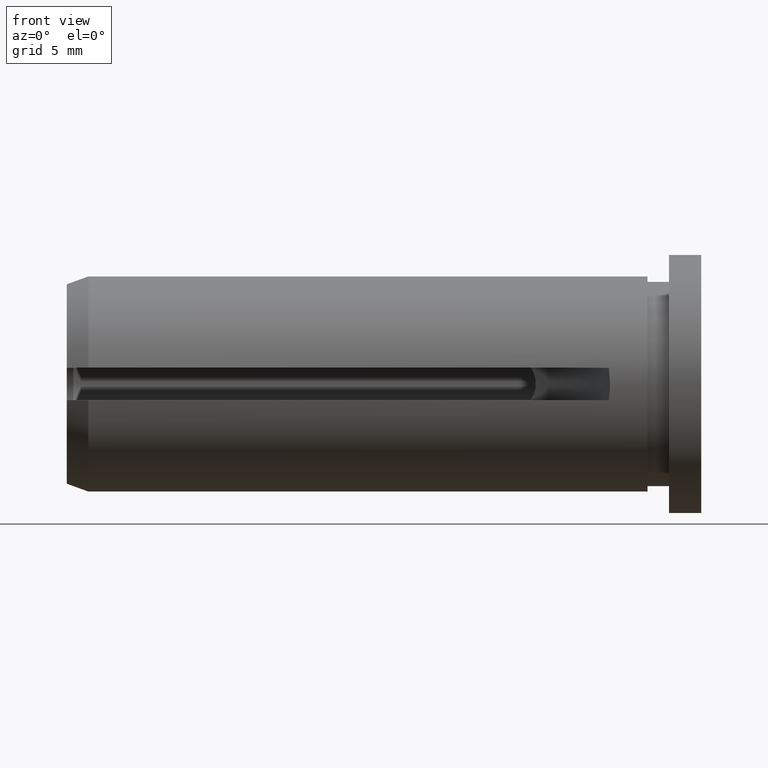
[diagram: clean part render]
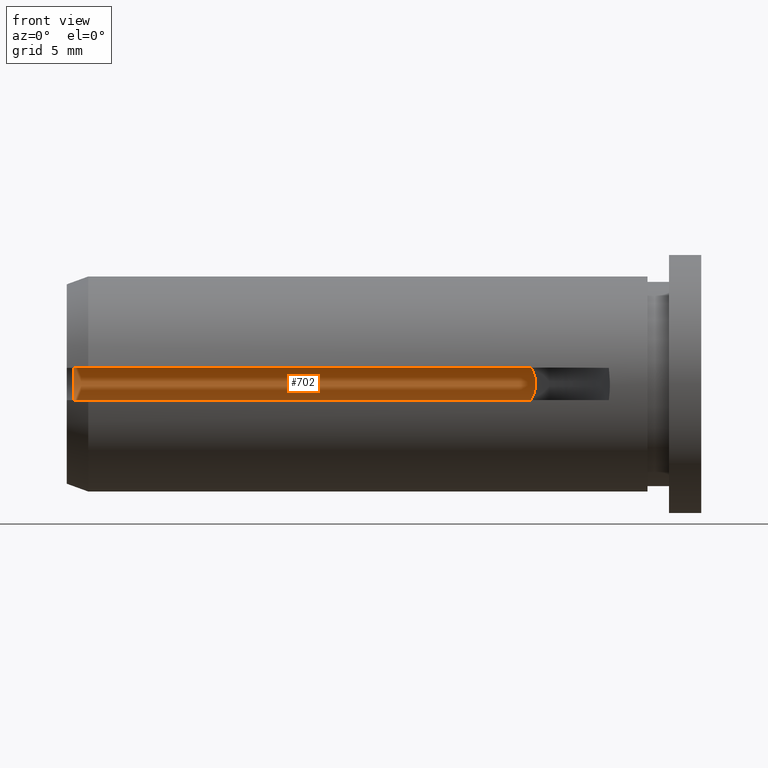
[diagram: same view with one face highlighted and labeled with its STEP entity id]
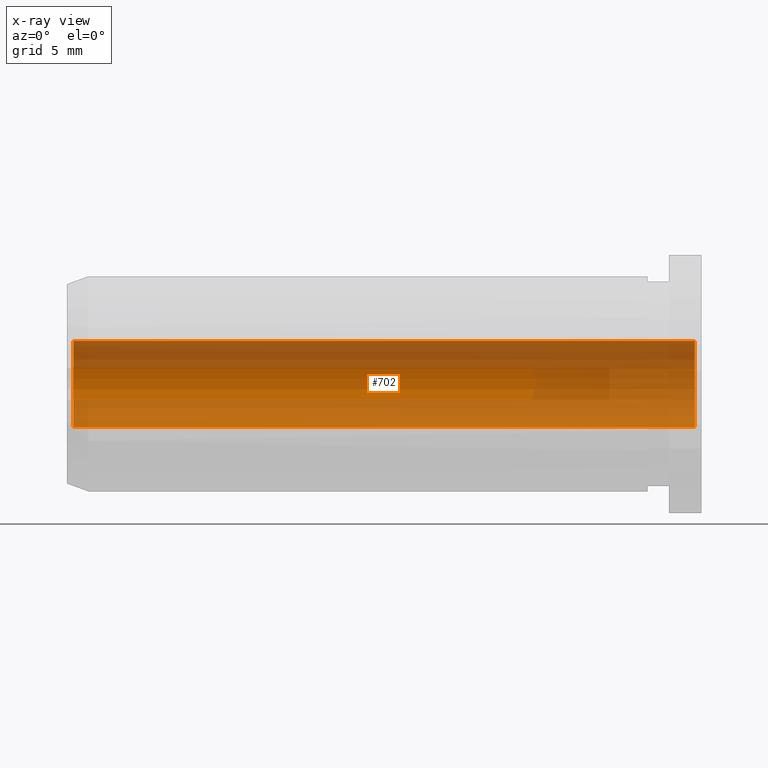
[diagram: x-ray of the same camera — body ghosted, the highlighted face saturated]
A machine part, front view. The second image highlights one B-rep face of the part: STEP entity #702.
The next image is the same camera in x-ray: the body ghosted, the highlighted face saturated — about 72% of this face is hidden behind the body in this view.
In plain terms, the highlighted cylindrical surface (partial cylindrical patch) has radius 2 mm, axis along (-1, -0, -0).
Its self-contained STEP definition (entity closure, byte-faithful):
#10 = CYLINDRICAL_SURFACE ( 'NONE', #131, 2.000000000000000000 ) ;
#37 = CARTESIAN_POINT ( 'NONE',  ( -29.19999999999999900, 0.0000000000000000000, 2.000000000000000000 ) ) ;
#45 = DIRECTION ( 'NONE',  ( 0.0000000000000000000, 0.0000000000000000000, 1.000000000000000000 ) ) ;
#48 = LINE ( 'NONE', #644, #208 ) ;
#52 = CARTESIAN_POINT ( 'NONE',  ( -0.3000000000000016500, 2.555351122167198000E-016, 2.000000000000000000 ) ) ;
#56 = VERTEX_POINT ( 'NONE', #716 ) ;
#81 = DIRECTION ( 'NONE',  ( 0.0000000000000000000, 0.0000000000000000000, 1.000000000000000000 ) ) ;
#88 = DIRECTION ( 'NONE',  ( -1.000000000000000000, -0.0000000000000000000, -0.0000000000000000000 ) ) ;
#112 = DIRECTION ( 'NONE',  ( -1.000000000000000000, -0.0000000000000000000, -0.0000000000000000000 ) ) ;
#131 = AXIS2_PLACEMENT_3D ( 'NONE', #519, #112, #81 ) ;
#156 = VERTEX_POINT ( 'NONE', #52 ) ;
#199 = LINE ( 'NONE', #332, #729 ) ;
#204 = EDGE_CURVE ( 'NONE', #156, #56, #512, .T. ) ;
#208 = VECTOR ( 'NONE', #304, 1000.000000000000000 ) ;
#234 = EDGE_CURVE ( 'NONE', #156, #596, #199, .T. ) ;
#246 = CIRCLE ( 'NONE', #749, 2.000000000000000000 ) ;
#300 = ORIENTED_EDGE ( 'NONE', *, *, #204, .F. ) ;
#304 = DIRECTION ( 'NONE',  ( -1.000000000000000000, -0.0000000000000000000, -0.0000000000000000000 ) ) ;
#319 = EDGE_CURVE ( 'NONE', #56, #391, #48, .T. ) ;
#323 = AXIS2_PLACEMENT_3D ( 'NONE', #324, #88, #45 ) ;
#324 = CARTESIAN_POINT ( 'NONE',  ( -0.3000000000000016500, 0.0000000000000000000, 0.0000000000000000000 ) ) ;
#332 = CARTESIAN_POINT ( 'NONE',  ( -33.37338553259883200, 0.0000000000000000000, 2.000000000000000000 ) ) ;
#391 = VERTEX_POINT ( 'NONE', #508 ) ;
#428 = DIRECTION ( 'NONE',  ( 0.0000000000000000000, 0.0000000000000000000, 1.000000000000000000 ) ) ;
#480 = EDGE_CURVE ( 'NONE', #596, #391, #246, .T. ) ;
#484 = CARTESIAN_POINT ( 'NONE',  ( -29.19999999999999900, 0.0000000000000000000, 0.0000000000000000000 ) ) ;
#508 = CARTESIAN_POINT ( 'NONE',  ( -29.19999999999999900, 2.449293598294706400E-016, -2.000000000000000000 ) ) ;
#512 = CIRCLE ( 'NONE', #323, 2.000000000000000000 ) ;
#519 = CARTESIAN_POINT ( 'NONE',  ( -33.37338553259883200, 0.0000000000000000000, 0.0000000000000000000 ) ) ;
#593 = ORIENTED_EDGE ( 'NONE', *, *, #234, .T. ) ;
#596 = VERTEX_POINT ( 'NONE', #37 ) ;
#597 = EDGE_LOOP ( 'NONE', ( #744, #300, #593, #652 ) ) ;
#633 = DIRECTION ( 'NONE',  ( -1.000000000000000000, -0.0000000000000000000, -0.0000000000000000000 ) ) ;
#644 = CARTESIAN_POINT ( 'NONE',  ( -33.37338553259883200, 2.449293598294706400E-016, -2.000000000000000000 ) ) ;
#652 = ORIENTED_EDGE ( 'NONE', *, *, #480, .T. ) ;
#702 = ADVANCED_FACE ( 'NONE', ( #706 ), #10, .F. ) ;
#706 = FACE_OUTER_BOUND ( 'NONE', #597, .T. ) ;
#716 = CARTESIAN_POINT ( 'NONE',  ( -0.3000000000000016500, 0.0000000000000000000, -2.000000000000000000 ) ) ;
#719 = DIRECTION ( 'NONE',  ( -1.000000000000000000, -0.0000000000000000000, -0.0000000000000000000 ) ) ;
#729 = VECTOR ( 'NONE', #633, 1000.000000000000000 ) ;
#744 = ORIENTED_EDGE ( 'NONE', *, *, #319, .F. ) ;
#749 = AXIS2_PLACEMENT_3D ( 'NONE', #484, #719, #428 ) ;